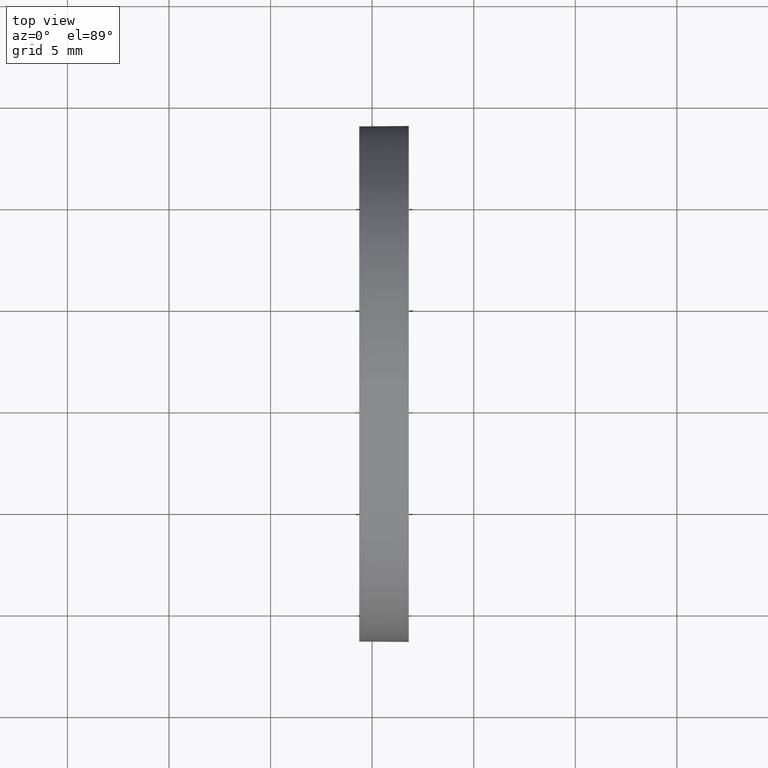
[diagram: clean part render]
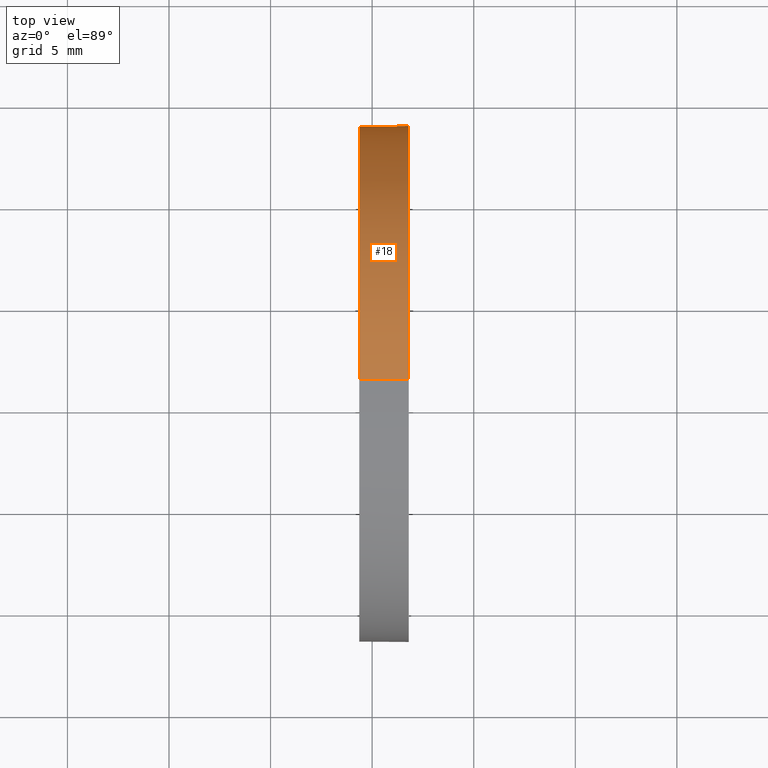
[diagram: same view with one face highlighted and labeled with its STEP entity id]
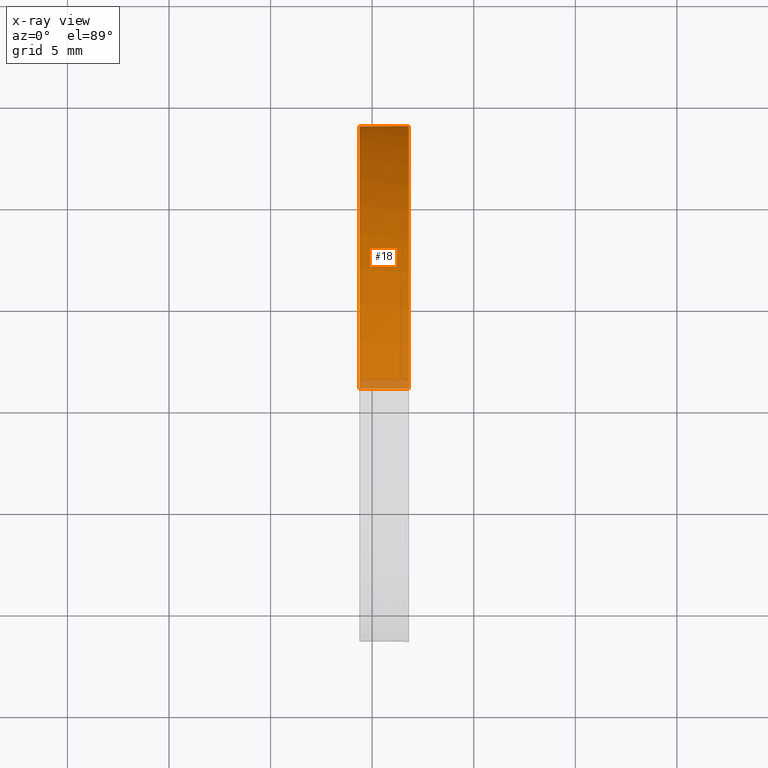
[diagram: x-ray of the same camera — body ghosted, the highlighted face saturated]
A machine part, top view. The second image highlights one B-rep face of the part: STEP entity #18.
The next image is the same camera in x-ray: the body ghosted, the highlighted face saturated — about 3% of this face is hidden behind the body in this view.
In plain terms, the highlighted cylindrical surface (partial cylindrical patch) has radius 12.7 mm, axis along (-1, -0, -0).
Its self-contained STEP definition (entity closure, byte-faithful):
#2 = CARTESIAN_POINT ( 'NONE',  ( 111.9552297575605700, 71.19398908659370300, 12.69999999999998200 ) ) ;
#6 = EDGE_LOOP ( 'NONE', ( #93, #28, #105, #166, #9 ) ) ;
#9 = ORIENTED_EDGE ( 'NONE', *, *, #65, .T. ) ;
#14 = CARTESIAN_POINT ( 'NONE',  ( 119.3629307920347200, 71.19398908659370300, 0.0000000000000000000 ) ) ;
#18 = ADVANCED_FACE ( 'NONE', ( #179 ), #46, .T. ) ;
#21 = VERTEX_POINT ( 'NONE', #85 ) ;
#22 = CARTESIAN_POINT ( 'NONE',  ( 119.3629307920347200, 71.19398908659370300, -12.70000000000000100 ) ) ;
#26 = EDGE_CURVE ( 'NONE', #153, #138, #168, .T. ) ;
#28 = ORIENTED_EDGE ( 'NONE', *, *, #136, .T. ) ;
#37 = AXIS2_PLACEMENT_3D ( 'NONE', #14, #118, #106 ) ;
#40 = CARTESIAN_POINT ( 'NONE',  ( 119.3629307920347200, 71.19398908659370300, 12.70000000000000300 ) ) ;
#44 = AXIS2_PLACEMENT_3D ( 'NONE', #156, #87, #175 ) ;
#46 = CYLINDRICAL_SURFACE ( 'NONE', #44, 12.69999999999998200 ) ;
#50 = DIRECTION ( 'NONE',  ( 0.0000000000000000000, 0.0000000000000000000, 1.000000000000000000 ) ) ;
#51 = DIRECTION ( 'NONE',  ( -1.000000000000000000, -0.0000000000000000000, -0.0000000000000000000 ) ) ;
#52 = CARTESIAN_POINT ( 'NONE',  ( 121.8032051841508400, 71.19398908659370300, 0.0000000000000000000 ) ) ;
#58 = CARTESIAN_POINT ( 'NONE',  ( 111.9552297575605700, 71.19398908659370300, -12.69999999999998200 ) ) ;
#60 = CARTESIAN_POINT ( 'NONE',  ( 121.8032051841508300, 83.89398908659370600, 0.0000000000000000000 ) ) ;
#65 = EDGE_CURVE ( 'NONE', #21, #153, #126, .T. ) ;
#81 = VERTEX_POINT ( 'NONE', #22 ) ;
#85 = CARTESIAN_POINT ( 'NONE',  ( 121.8032051841508400, 71.19398908659370300, 12.69999999999996200 ) ) ;
#87 = DIRECTION ( 'NONE',  ( -1.000000000000000000, -0.0000000000000000000, -0.0000000000000000000 ) ) ;
#91 = VECTOR ( 'NONE', #141, 1000.000000000000000 ) ;
#93 = ORIENTED_EDGE ( 'NONE', *, *, #26, .T. ) ;
#105 = ORIENTED_EDGE ( 'NONE', *, *, #108, .F. ) ;
#106 = DIRECTION ( 'NONE',  ( 0.0000000000000000000, 0.0000000000000000000, 1.000000000000000000 ) ) ;
#108 = EDGE_CURVE ( 'NONE', #180, #81, #129, .T. ) ;
#118 = DIRECTION ( 'NONE',  ( -1.000000000000000000, -0.0000000000000000000, -0.0000000000000000000 ) ) ;
#121 = LINE ( 'NONE', #2, #91 ) ;
#125 = EDGE_CURVE ( 'NONE', #21, #180, #121, .T. ) ;
#126 = CIRCLE ( 'NONE', #170, 12.69999999999996200 ) ;
#129 = CIRCLE ( 'NONE', #37, 12.70000000000000300 ) ;
#136 = EDGE_CURVE ( 'NONE', #138, #81, #160, .T. ) ;
#138 = VERTEX_POINT ( 'NONE', #143 ) ;
#141 = DIRECTION ( 'NONE',  ( -1.000000000000000000, -0.0000000000000000000, -0.0000000000000000000 ) ) ;
#143 = CARTESIAN_POINT ( 'NONE',  ( 121.8032051841508400, 71.19398908659370300, -12.69999999999996200 ) ) ;
#153 = VERTEX_POINT ( 'NONE', #60 ) ;
#156 = CARTESIAN_POINT ( 'NONE',  ( 111.9552297575605700, 71.19398908659370300, 0.0000000000000000000 ) ) ;
#158 = DIRECTION ( 'NONE',  ( -1.000000000000000000, -0.0000000000000000000, -0.0000000000000000000 ) ) ;
#160 = LINE ( 'NONE', #58, #169 ) ;
#162 = AXIS2_PLACEMENT_3D ( 'NONE', #174, #51, #50 ) ;
#166 = ORIENTED_EDGE ( 'NONE', *, *, #125, .F. ) ;
#168 = CIRCLE ( 'NONE', #162, 12.69999999999996200 ) ;
#169 = VECTOR ( 'NONE', #181, 1000.000000000000000 ) ;
#170 = AXIS2_PLACEMENT_3D ( 'NONE', #52, #158, #172 ) ;
#172 = DIRECTION ( 'NONE',  ( 0.0000000000000000000, 0.0000000000000000000, 1.000000000000000000 ) ) ;
#174 = CARTESIAN_POINT ( 'NONE',  ( 121.8032051841508400, 71.19398908659370300, 0.0000000000000000000 ) ) ;
#175 = DIRECTION ( 'NONE',  ( 0.0000000000000000000, 0.0000000000000000000, 1.000000000000000000 ) ) ;
#179 = FACE_OUTER_BOUND ( 'NONE', #6, .T. ) ;
#180 = VERTEX_POINT ( 'NONE', #40 ) ;
#181 = DIRECTION ( 'NONE',  ( -1.000000000000000000, -0.0000000000000000000, -0.0000000000000000000 ) ) ;